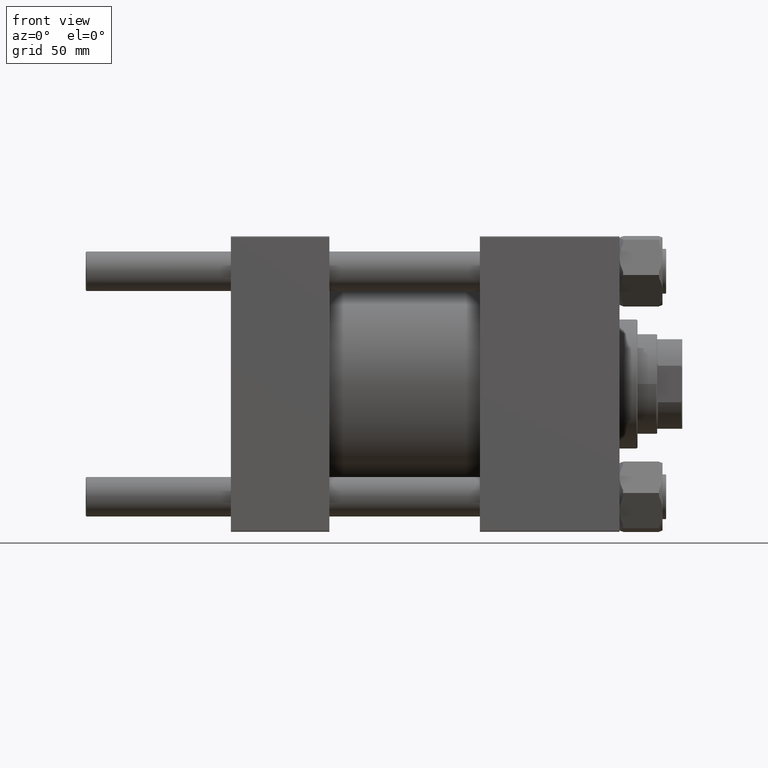
[diagram: clean part render]
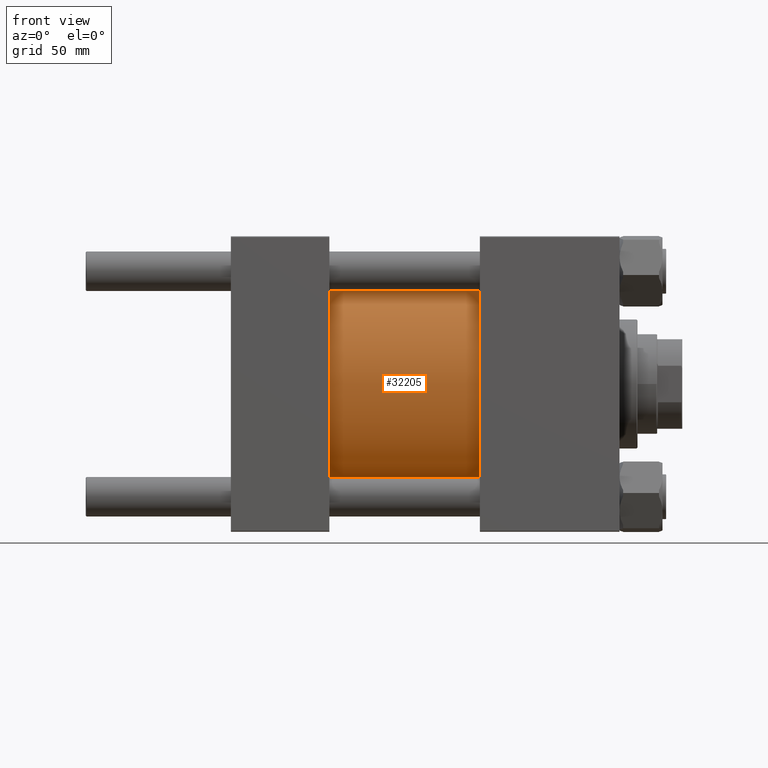
[diagram: same view with one face highlighted and labeled with its STEP entity id]
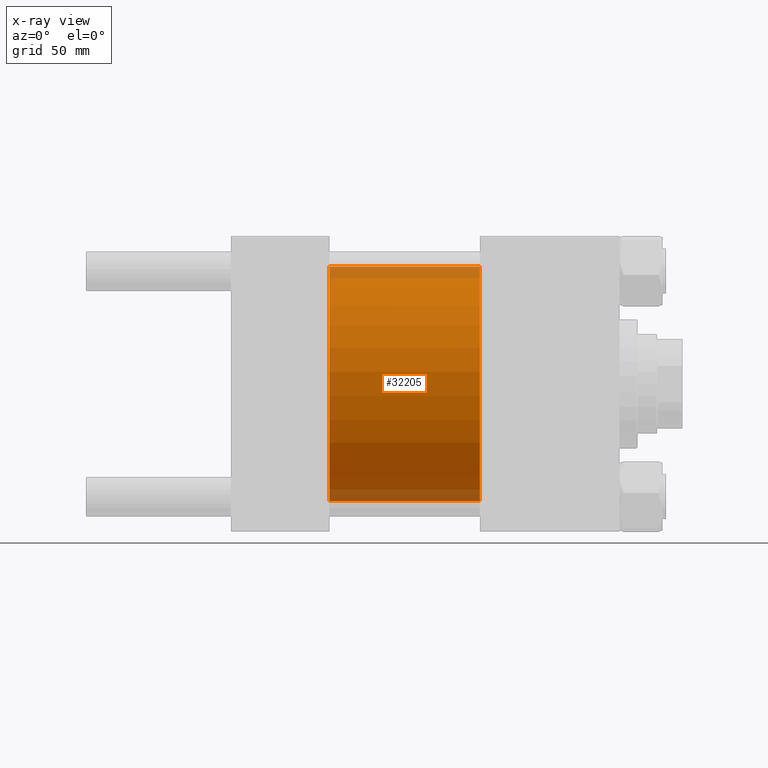
[diagram: x-ray of the same camera — body ghosted, the highlighted face saturated]
A machine part, front view. The second image highlights one B-rep face of the part: STEP entity #32205.
The next image is the same camera in x-ray: the body ghosted, the highlighted face saturated — about 10% of this face is hidden behind the body in this view.
In plain terms, the highlighted cylindrical surface (partial cylindrical patch) has radius 65.5 mm, axis along (-1, -0, -0).
Its self-contained STEP definition (entity closure, byte-faithful):
#685 = DIRECTION ( 'NONE',  ( 0.000000000000000000, 0.000000000000000000, 1.000000000000000000 ) ) ;
#1191 = CARTESIAN_POINT ( 'NONE',  ( 139.0000000000000000, 0.000000000000000000, 0.000000000000000000 ) ) ;
#2523 = CARTESIAN_POINT ( 'NONE',  ( 54.99999999999999289, 0.000000000000000000, 65.50000000000001421 ) ) ;
#4163 = EDGE_CURVE ( 'NONE', #41636, #5699, #11136, .T. ) ;
#4190 = CARTESIAN_POINT ( 'NONE',  ( 139.0000000000000000, 8.021436534415164826E-15, -65.50000000000001421 ) ) ;
#5195 = DIRECTION ( 'NONE',  ( -1.000000000000000000, -0.000000000000000000, -0.000000000000000000 ) ) ;
#5699 = VERTEX_POINT ( 'NONE', #2523 ) ;
#6124 = ORIENTED_EDGE ( 'NONE', *, *, #8802, .F. ) ;
#6287 = CIRCLE ( 'NONE', #29914, 65.50000000000001421 ) ;
#8802 = EDGE_CURVE ( 'NONE', #46163, #23239, #28652, .T. ) ;
#9988 = EDGE_CURVE ( 'NONE', #41636, #46163, #33855, .T. ) ;
#11136 = LINE ( 'NONE', #42237, #15038 ) ;
#12919 = DIRECTION ( 'NONE',  ( 1.000000000000000000, -0.000000000000000000, -0.000000000000000000 ) ) ;
#15038 = VECTOR ( 'NONE', #22862, 1000.000000000000000 ) ;
#15170 = CARTESIAN_POINT ( 'NONE',  ( 139.0000000000000000, 0.000000000000000000, 0.000000000000000000 ) ) ;
#17778 = DIRECTION ( 'NONE',  ( -1.000000000000000000, -0.000000000000000000, -0.000000000000000000 ) ) ;
#18194 = CARTESIAN_POINT ( 'NONE',  ( 139.0000000000000000, 8.021436534415164826E-15, -65.50000000000001421 ) ) ;
#18381 = AXIS2_PLACEMENT_3D ( 'NONE', #15170, #31221, #50366 ) ;
#18402 = CARTESIAN_POINT ( 'NONE',  ( 54.99999999999999289, 8.021436534415164826E-15, -65.50000000000001421 ) ) ;
#21097 = CYLINDRICAL_SURFACE ( 'NONE', #22919, 65.50000000000001421 ) ;
#21614 = EDGE_CURVE ( 'NONE', #5699, #23239, #6287, .T. ) ;
#22862 = DIRECTION ( 'NONE',  ( -1.000000000000000000, -0.000000000000000000, -0.000000000000000000 ) ) ;
#22919 = AXIS2_PLACEMENT_3D ( 'NONE', #1191, #17778, #28741 ) ;
#23239 = VERTEX_POINT ( 'NONE', #18402 ) ;
#25105 = ORIENTED_EDGE ( 'NONE', *, *, #9988, .F. ) ;
#28652 = LINE ( 'NONE', #4190, #41929 ) ;
#28741 = DIRECTION ( 'NONE',  ( 0.000000000000000000, 0.000000000000000000, 1.000000000000000000 ) ) ;
#29513 = ORIENTED_EDGE ( 'NONE', *, *, #4163, .T. ) ;
#29914 = AXIS2_PLACEMENT_3D ( 'NONE', #43528, #12919, #685 ) ;
#31221 = DIRECTION ( 'NONE',  ( 1.000000000000000000, 0.000000000000000000, 0.000000000000000000 ) ) ;
#32205 = ADVANCED_FACE ( 'NONE', ( #39962 ), #21097, .T. ) ;
#33855 = CIRCLE ( 'NONE', #18381, 65.50000000000001421 ) ;
#35155 = ORIENTED_EDGE ( 'NONE', *, *, #21614, .T. ) ;
#35441 = EDGE_LOOP ( 'NONE', ( #6124, #25105, #29513, #35155 ) ) ;
#38430 = CARTESIAN_POINT ( 'NONE',  ( 139.0000000000000000, 0.000000000000000000, 65.50000000000001421 ) ) ;
#39962 = FACE_OUTER_BOUND ( 'NONE', #35441, .T. ) ;
#41636 = VERTEX_POINT ( 'NONE', #38430 ) ;
#41929 = VECTOR ( 'NONE', #5195, 1000.000000000000000 ) ;
#42237 = CARTESIAN_POINT ( 'NONE',  ( 139.0000000000000000, 0.000000000000000000, 65.50000000000001421 ) ) ;
#43528 = CARTESIAN_POINT ( 'NONE',  ( 54.99999999999999289, 0.000000000000000000, 0.000000000000000000 ) ) ;
#46163 = VERTEX_POINT ( 'NONE', #18194 ) ;
#50366 = DIRECTION ( 'NONE',  ( 0.000000000000000000, 0.000000000000000000, -1.000000000000000000 ) ) ;